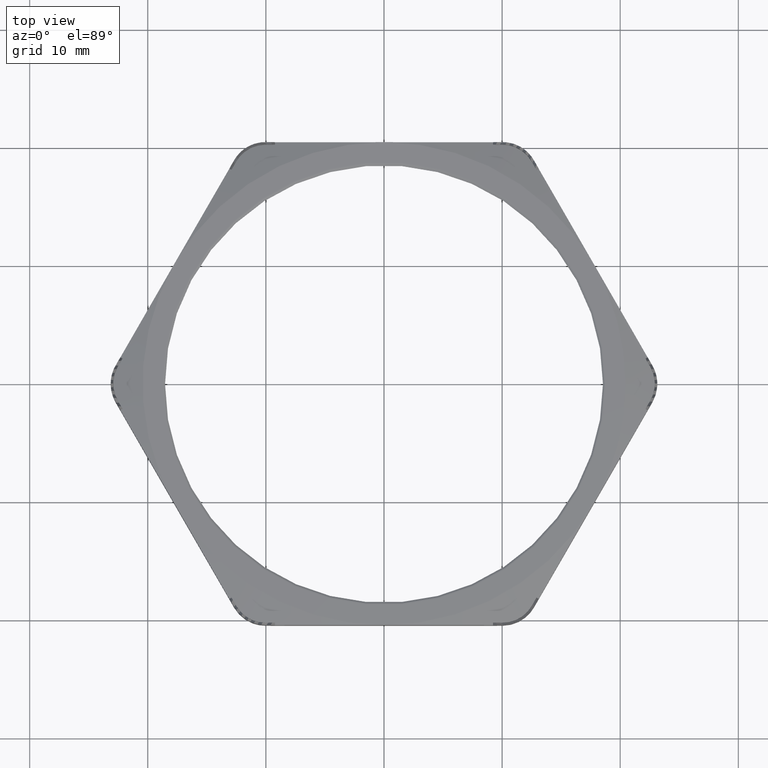
[diagram: clean part render]
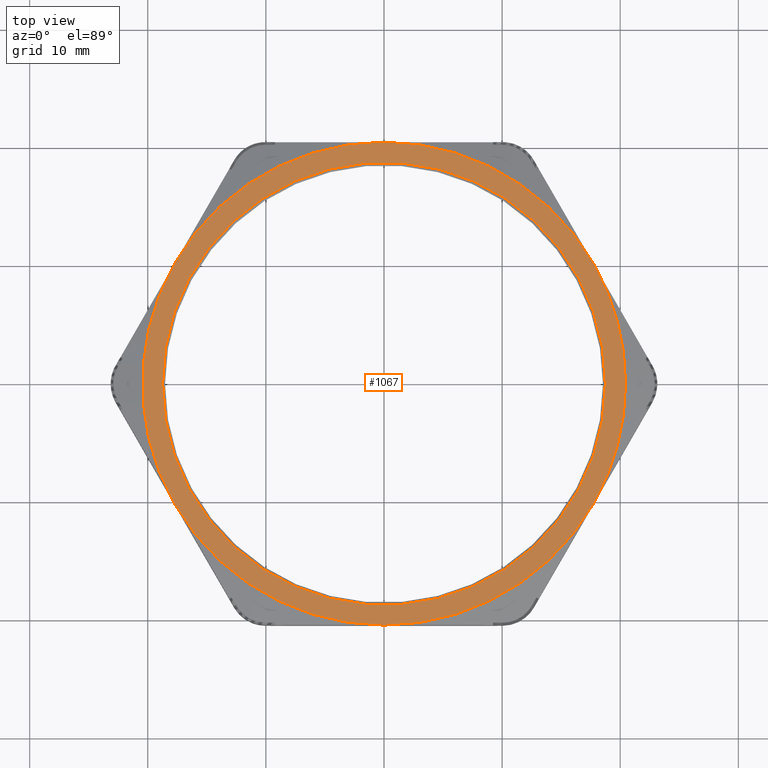
[diagram: same view with one face highlighted and labeled with its STEP entity id]
A machine part, top view. The second image highlights one B-rep face of the part: STEP entity #1067.
In plain terms, the highlighted planar face has unit normal (0, 0, -1).
Its self-contained STEP definition (entity closure, byte-faithful):
#820 = VERTEX_POINT ( 'NONE', #3537 ) ;
#838 = VERTEX_POINT ( 'NONE', #3556 ) ;
#1067 = ADVANCED_FACE ( 'NONE', ( #4055, #4054 ), #4048, .F. ) ;
#1068 = EDGE_LOOP ( 'NONE', ( #1069, #1070 ) ) ;
#1069 = ORIENTED_EDGE ( 'NONE', *, *, #2032, .T. ) ;
#1070 = ORIENTED_EDGE ( 'NONE', *, *, #1071, .T. ) ;
#1071 = EDGE_CURVE ( 'NONE', #2088, #2052, #4043, .T. ) ;
#1072 = EDGE_LOOP ( 'NONE', ( #1073, #1075, #1135, #1137, #1139, #1141, #1142 ) ) ;
#1073 = ORIENTED_EDGE ( 'NONE', *, *, #1074, .F. ) ;
#1074 = EDGE_CURVE ( 'NONE', #2315, #838, #4073, .T. ) ;
#1075 = ORIENTED_EDGE ( 'NONE', *, *, #1134, .F. ) ;
#1134 = EDGE_CURVE ( 'NONE', #2249, #2315, #4203, .T. ) ;
#1135 = ORIENTED_EDGE ( 'NONE', *, *, #1136, .F. ) ;
#1136 = EDGE_CURVE ( 'NONE', #2260, #2249, #4198, .T. ) ;
#1137 = ORIENTED_EDGE ( 'NONE', *, *, #1138, .F. ) ;
#1138 = EDGE_CURVE ( 'NONE', #820, #2260, #4193, .T. ) ;
#1139 = ORIENTED_EDGE ( 'NONE', *, *, #1140, .F. ) ;
#1140 = EDGE_CURVE ( 'NONE', #1975, #820, #4188, .T. ) ;
#1141 = ORIENTED_EDGE ( 'NONE', *, *, #1973, .F. ) ;
#1142 = ORIENTED_EDGE ( 'NONE', *, *, #1143, .T. ) ;
#1143 = EDGE_CURVE ( 'NONE', #1974, #838, #4244, .T. ) ;
#1973 = EDGE_CURVE ( 'NONE', #1974, #1975, #5794, .T. ) ;
#1974 = VERTEX_POINT ( 'NONE', #5790 ) ;
#1975 = VERTEX_POINT ( 'NONE', #5789 ) ;
#2032 = EDGE_CURVE ( 'NONE', #2052, #2088, #5907, .T. ) ;
#2052 = VERTEX_POINT ( 'NONE', #5933 ) ;
#2088 = VERTEX_POINT ( 'NONE', #6062 ) ;
#2249 = VERTEX_POINT ( 'NONE', #6359 ) ;
#2260 = VERTEX_POINT ( 'NONE', #6387 ) ;
#2315 = VERTEX_POINT ( 'NONE', #6462 ) ;
#3537 = CARTESIAN_POINT ( 'NONE',  ( 0.6971504500464732500, -0.4025000000000000800, 0.1600000000000000000 ) ) ;
#3556 = CARTESIAN_POINT ( 'NONE',  ( 0.0000000000000000000, 0.8050000000000001600, 0.1600000000000000000 ) ) ;
#4042 = AXIS2_PLACEMENT_3D ( 'NONE', #4076, #4075, #4074 ) ;
#4043 = CIRCLE ( 'NONE', #4042, 0.7379999999999999900 ) ;
#4044 = DIRECTION ( 'NONE',  ( -1.000000000000000000, 0.0000000000000000000, 0.0000000000000000000 ) ) ;
#4045 = DIRECTION ( 'NONE',  ( 0.0000000000000000000, 0.0000000000000000000, -1.000000000000000000 ) ) ;
#4046 = CARTESIAN_POINT ( 'NONE',  ( 2.731847993664263200E-016, 1.610000000000000500, 0.1600000000000000000 ) ) ;
#4047 = AXIS2_PLACEMENT_3D ( 'NONE', #4046, #4045, #4044 ) ;
#4048 = PLANE ( 'NONE',  #4047 ) ;
#4054 = FACE_OUTER_BOUND ( 'NONE', #1072, .T. ) ;
#4055 = FACE_BOUND ( 'NONE', #1068, .T. ) ;
#4069 = DIRECTION ( 'NONE',  ( -1.000000000000000000, 0.0000000000000000000, 0.0000000000000000000 ) ) ;
#4070 = DIRECTION ( 'NONE',  ( 0.0000000000000000000, 0.0000000000000000000, -1.000000000000000000 ) ) ;
#4071 = CARTESIAN_POINT ( 'NONE',  ( 0.0000000000000000000, 0.0000000000000000000, 0.1600000000000000000 ) ) ;
#4072 = AXIS2_PLACEMENT_3D ( 'NONE', #4071, #4070, #4069 ) ;
#4073 = CIRCLE ( 'NONE', #4072, 0.8050000000000001600 ) ;
#4074 = DIRECTION ( 'NONE',  ( -1.000000000000000000, 0.0000000000000000000, 0.0000000000000000000 ) ) ;
#4075 = DIRECTION ( 'NONE',  ( 0.0000000000000000000, 0.0000000000000000000, -1.000000000000000000 ) ) ;
#4076 = CARTESIAN_POINT ( 'NONE',  ( 0.0000000000000000000, 0.0000000000000000000, 0.1600000000000000000 ) ) ;
#4184 = DIRECTION ( 'NONE',  ( -1.000000000000000000, 0.0000000000000000000, 0.0000000000000000000 ) ) ;
#4185 = DIRECTION ( 'NONE',  ( 0.0000000000000000000, 0.0000000000000000000, -1.000000000000000000 ) ) ;
#4186 = CARTESIAN_POINT ( 'NONE',  ( 0.0000000000000000000, 0.0000000000000000000, 0.1600000000000000000 ) ) ;
#4187 = AXIS2_PLACEMENT_3D ( 'NONE', #4186, #4185, #4184 ) ;
#4188 = CIRCLE ( 'NONE', #4187, 0.8050000000000001600 ) ;
#4189 = DIRECTION ( 'NONE',  ( -1.000000000000000000, 0.0000000000000000000, 0.0000000000000000000 ) ) ;
#4190 = DIRECTION ( 'NONE',  ( 0.0000000000000000000, 0.0000000000000000000, -1.000000000000000000 ) ) ;
#4191 = CARTESIAN_POINT ( 'NONE',  ( 0.0000000000000000000, 0.0000000000000000000, 0.1600000000000000000 ) ) ;
#4192 = AXIS2_PLACEMENT_3D ( 'NONE', #4191, #4190, #4189 ) ;
#4193 = CIRCLE ( 'NONE', #4192, 0.8050000000000001600 ) ;
#4194 = DIRECTION ( 'NONE',  ( -1.000000000000000000, 0.0000000000000000000, 0.0000000000000000000 ) ) ;
#4195 = DIRECTION ( 'NONE',  ( 0.0000000000000000000, 0.0000000000000000000, -1.000000000000000000 ) ) ;
#4196 = CARTESIAN_POINT ( 'NONE',  ( 0.0000000000000000000, 0.0000000000000000000, 0.1600000000000000000 ) ) ;
#4197 = AXIS2_PLACEMENT_3D ( 'NONE', #4196, #4195, #4194 ) ;
#4198 = CIRCLE ( 'NONE', #4197, 0.8050000000000001600 ) ;
#4199 = DIRECTION ( 'NONE',  ( -1.000000000000000000, 0.0000000000000000000, 0.0000000000000000000 ) ) ;
#4200 = DIRECTION ( 'NONE',  ( 0.0000000000000000000, 0.0000000000000000000, -1.000000000000000000 ) ) ;
#4201 = CARTESIAN_POINT ( 'NONE',  ( 0.0000000000000000000, 0.0000000000000000000, 0.1600000000000000000 ) ) ;
#4202 = AXIS2_PLACEMENT_3D ( 'NONE', #4201, #4200, #4199 ) ;
#4203 = CIRCLE ( 'NONE', #4202, 0.8050000000000001600 ) ;
#4240 = DIRECTION ( 'NONE',  ( 1.000000000000000000, 0.0000000000000000000, 0.0000000000000000000 ) ) ;
#4241 = DIRECTION ( 'NONE',  ( 0.0000000000000000000, 0.0000000000000000000, 1.000000000000000000 ) ) ;
#4242 = CARTESIAN_POINT ( 'NONE',  ( 0.0000000000000000000, 0.0000000000000000000, 0.1600000000000000000 ) ) ;
#4243 = AXIS2_PLACEMENT_3D ( 'NONE', #4242, #4241, #4240 ) ;
#4244 = CIRCLE ( 'NONE', #4243, 0.8050000000000001600 ) ;
#5789 = CARTESIAN_POINT ( 'NONE',  ( 0.8050000000000001600, 0.0000000000000000000, 0.1600000000000000000 ) ) ;
#5790 = CARTESIAN_POINT ( 'NONE',  ( 0.6971504500464732500, 0.4024999999999999100, 0.1600000000000000000 ) ) ;
#5791 = DIRECTION ( 'NONE',  ( -1.000000000000000000, 0.0000000000000000000, 0.0000000000000000000 ) ) ;
#5792 = DIRECTION ( 'NONE',  ( 0.0000000000000000000, 0.0000000000000000000, -1.000000000000000000 ) ) ;
#5793 = AXIS2_PLACEMENT_3D ( 'NONE', #5798, #5792, #5791 ) ;
#5794 = CIRCLE ( 'NONE', #5793, 0.8050000000000001600 ) ;
#5798 = CARTESIAN_POINT ( 'NONE',  ( 0.0000000000000000000, 0.0000000000000000000, 0.1600000000000000000 ) ) ;
#5903 = DIRECTION ( 'NONE',  ( -1.000000000000000000, 0.0000000000000000000, 0.0000000000000000000 ) ) ;
#5904 = DIRECTION ( 'NONE',  ( 0.0000000000000000000, 0.0000000000000000000, -1.000000000000000000 ) ) ;
#5905 = CARTESIAN_POINT ( 'NONE',  ( 0.0000000000000000000, 0.0000000000000000000, 0.1600000000000000000 ) ) ;
#5906 = AXIS2_PLACEMENT_3D ( 'NONE', #5905, #5904, #5903 ) ;
#5907 = CIRCLE ( 'NONE', #5906, 0.7379999999999999900 ) ;
#5933 = CARTESIAN_POINT ( 'NONE',  ( -0.7379999999999999900, 0.0000000000000000000, 0.1600000000000000000 ) ) ;
#6062 = CARTESIAN_POINT ( 'NONE',  ( 0.7379999999999999900, 9.037893377707468800E-017, 0.1600000000000000000 ) ) ;
#6359 = CARTESIAN_POINT ( 'NONE',  ( -0.6971504500464734700, -0.4024999999999999100, 0.1600000000000000000 ) ) ;
#6387 = CARTESIAN_POINT ( 'NONE',  ( 1.182924880895400800E-016, -0.8050000000000001600, 0.1600000000000000000 ) ) ;
#6462 = CARTESIAN_POINT ( 'NONE',  ( -0.6971504500464731400, 0.4025000000000001900, 0.1600000000000000000 ) ) ;